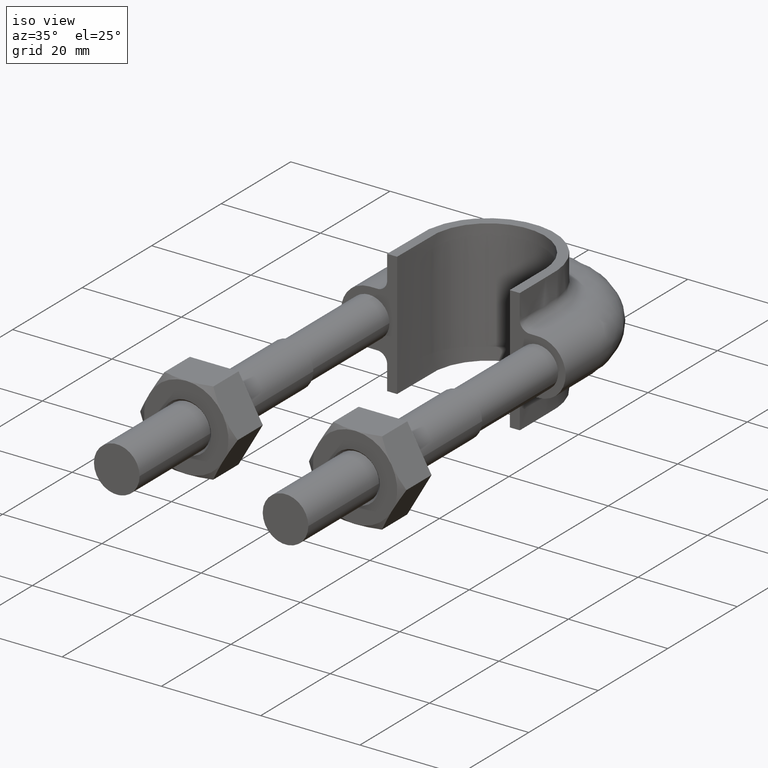
[diagram: clean part render]
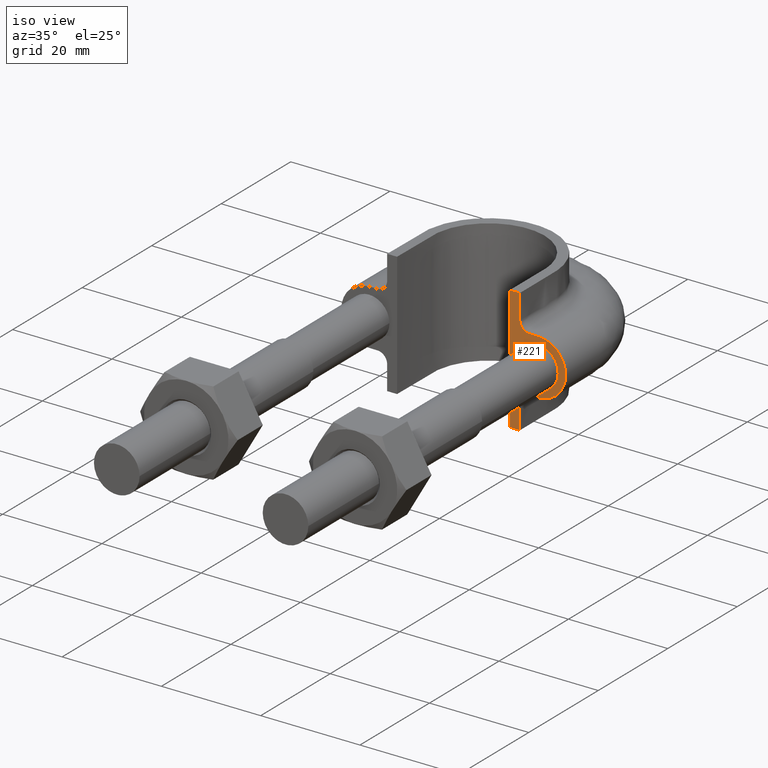
[diagram: same view with one face highlighted and labeled with its STEP entity id]
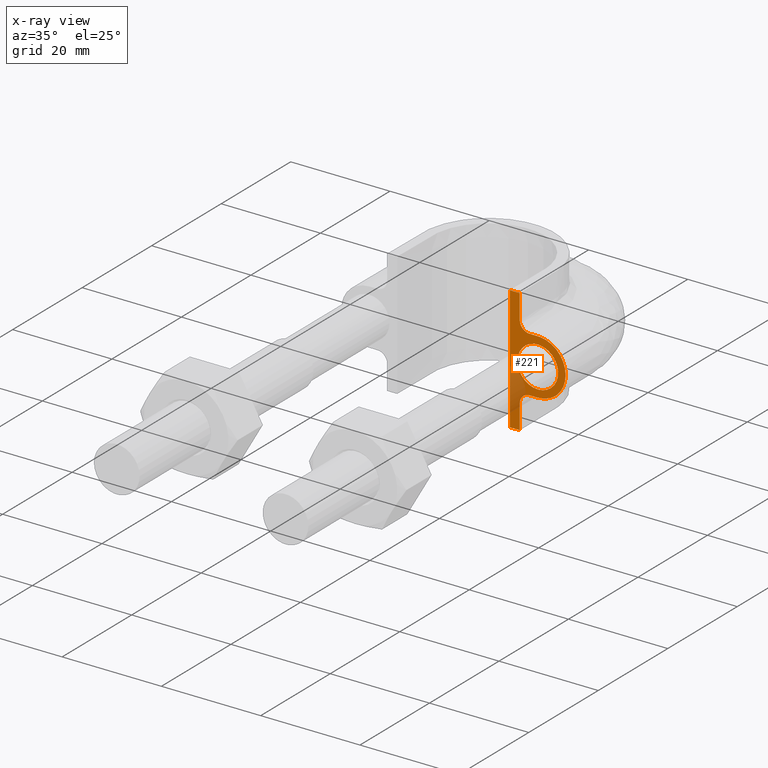
[diagram: x-ray of the same camera — body ghosted, the highlighted face saturated]
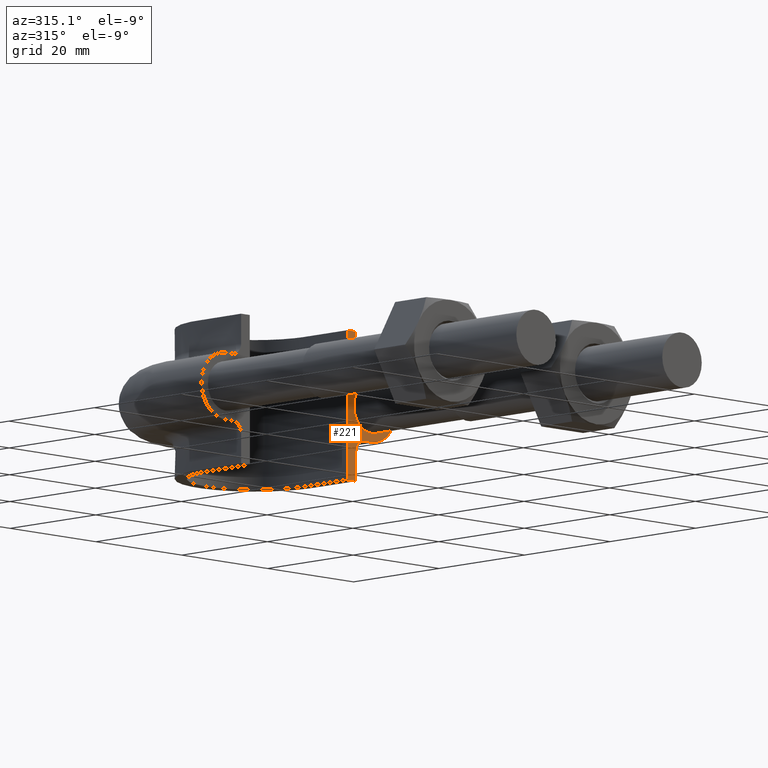
[diagram: same view with one face highlighted and labeled with its STEP entity id]
A machine part, iso view. The second image highlights one B-rep face of the part: STEP entity #221.
The next image is the same camera in x-ray: the body ghosted, the highlighted face saturated — about 20% of this face is hidden behind the body in this view.
A second angle (auxiliary view) of the same face is appended — the face is thin or edge-on in the first view.
In plain terms, the highlighted planar face has unit normal (0, 1, 0).
Its self-contained STEP definition (entity closure, byte-faithful):
#221 = ADVANCED_FACE( '', ( #301, #302 ), #303, .F. );
#301 = FACE_BOUND( '', #473, .T. );
#302 = FACE_OUTER_BOUND( '', #474, .T. );
#303 = PLANE( '', #475 );
#473 = EDGE_LOOP( '', ( #1562 ) );
#474 = EDGE_LOOP( '', ( #1563, #1564, #1565, #1566 ) );
#475 = AXIS2_PLACEMENT_3D( '', #1567, #1568, #1569 );
#1562 = ORIENTED_EDGE( '', *, *, #2095, .T. );
#1563 = ORIENTED_EDGE( '', *, *, #2096, .F. );
#1564 = ORIENTED_EDGE( '', *, *, #2094, .T. );
#1565 = ORIENTED_EDGE( '', *, *, #2097, .T. );
#1566 = ORIENTED_EDGE( '', *, *, #2098, .F. );
#1567 = CARTESIAN_POINT( '', ( -25.0000000000000, 72.6000000000000, 12.5000000000000 ) );
#1568 = DIRECTION( '', ( 1.22460635382238E-016, 1.00000000000000, 0.000000000000000 ) );
#1569 = DIRECTION( '', ( -1.00000000000000, 1.22460635382238E-016, 0.000000000000000 ) );
#2094 = EDGE_CURVE( '', #2249, #2251, #2253, .T. );
#2095 = EDGE_CURVE( '', #2254, #2254, #2255, .T. );
#2096 = EDGE_CURVE( '', #2249, #2256, #2257, .T. );
#2097 = EDGE_CURVE( '', #2251, #2258, #2259, .T. );
#2098 = EDGE_CURVE( '', #2256, #2258, #2260, .T. );
#2249 = VERTEX_POINT( '', #2541 );
#2251 = VERTEX_POINT( '', #2561 );
#2253 = LINE( '', #2581, #2582 );
#2254 = VERTEX_POINT( '', #2583 );
#2255 = B_SPLINE_CURVE_WITH_KNOTS( '', 3, ( #2584, #2585, #2586, #2587, #2588, #2589, #2590, #2591, #2592, #2593 ), .UNSPECIFIED., .T., .F., ( 4, 1, 1, 1, 1, 1, 1, 4 ), ( 0.000000000000000, 0.00365634574703305, 0.00731269149406610, 0.0109690372410991, 0.0146253829881322, 0.0182817287351652, 0.0219380744821983, 0.0255944202292313 ), .UNSPECIFIED. );
#2256 = VERTEX_POINT( '', #2594 );
#2257 = LINE( '', #2595, #2596 );
#2258 = VERTEX_POINT( '', #2597 );
#2259 = B_SPLINE_CURVE_WITH_KNOTS( '', 3, ( #2598, #2599, #2600, #2601, #2602, #2603, #2604, #2605, #2606, #2607, #2608, #2609, #2610, #2611, #2612, #2613, #2614, #2615, #2616, #2617, #2618, #2619, #2620, #2621, #2622, #2623, #2624, #2625, #2626, #2627, #2628 ), .UNSPECIFIED., .F., .F., ( 4, 3, 1, 1, 1, 3, 3, 1, 1, 1, 3, 3, 1, 1, 1, 3, 4 ), ( 1.38777878078145E-016, 0.00229452256537106, 0.00458904513074197, 0.00688356769611288, 0.00917809026148379, 0.0114726128268547, 0.0137671353922256, 0.0160616579575965, 0.0183561805229675, 0.0206507030883384, 0.0229452256537093, 0.0252397482190802, 0.0275342707844511, 0.0298287933498220, 0.0321233159151929, 0.0344178384805638, 0.0367123610459348 ), .UNSPECIFIED. );
#2260 = LINE( '', #2629, #2630 );
#2541 = CARTESIAN_POINT( '', ( 11.3600000000000, 72.6000000000000, -12.5000000000000 ) );
#2561 = CARTESIAN_POINT( '', ( 13.3600000000002, 72.6000000000000, -12.5000000000000 ) );
#2581 = CARTESIAN_POINT( '', ( -25.0000000000000, 72.6000000000000, -12.5000000000000 ) );
#2582 = VECTOR( '', #3112, 1000.00000000000 );
#2583 = CARTESIAN_POINT( '', ( 12.9000000000000, 72.6000000000000, 5.27117505211619E-016 ) );
#2584 = CARTESIAN_POINT( '', ( 12.9000000000000, 72.6000000000000, 3.25260651745651E-016 ) );
#2585 = CARTESIAN_POINT( '', ( 12.9000000000000, 72.6000000000000, 1.22184926194408 ) );
#2586 = CARTESIAN_POINT( '', ( 14.0768231851220, 72.6000000000000, 3.66554778583225 ) );
#2587 = CARTESIAN_POINT( '', ( 18.0432697263483, 72.6000000000000, 4.57086332538453 ) );
#2588 = CARTESIAN_POINT( '', ( 21.2241128848103, 72.6000000000000, 2.03422555230246 ) );
#2589 = CARTESIAN_POINT( '', ( 21.2241128848103, 72.6000000000000, -2.03422555230246 ) );
#2590 = CARTESIAN_POINT( '', ( 18.0432697263483, 72.6000000000000, -4.57086332538454 ) );
#2591 = CARTESIAN_POINT( '', ( 14.0768231851220, 72.6000000000000, -3.66554778583225 ) );
#2592 = CARTESIAN_POINT( '', ( 12.9000000000000, 72.6000000000000, -1.22184926194408 ) );
#2593 = CARTESIAN_POINT( '', ( 12.9000000000000, 72.6000000000000, 3.25260651745651E-016 ) );
#2594 = CARTESIAN_POINT( '', ( 11.3600000000000, 72.6000000000000, 12.5000000000000 ) );
#2595 = CARTESIAN_POINT( '', ( 11.3600000000000, 72.6000000000000, -51.4398853821152 ) );
#2596 = VECTOR( '', #3113, 1000.00000000000 );
#2597 = CARTESIAN_POINT( '', ( 13.3600000000000, 72.6000000000000, 12.5000000000000 ) );
#2598 = CARTESIAN_POINT( '', ( 13.3600000000002, 72.6000000000004, -12.5000000000001 ) );
#2599 = CARTESIAN_POINT( '', ( 13.3599999999999, 72.5999999999996, -10.8666666666666 ) );
#2600 = CARTESIAN_POINT( '', ( 13.3600000000001, 72.6000000000001, -9.23333333333339 ) );
#2601 = CARTESIAN_POINT( '', ( 13.3600000000000, 72.6000000000000, -7.60000000000001 ) );
#2602 = CARTESIAN_POINT( '', ( 13.3600000000000, 72.5999999999999, -7.33823584172334 ) );
#2603 = CARTESIAN_POINT( '', ( 13.4641362568359, 72.6000000000000, -6.81470752517002 ) );
#2604 = CARTESIAN_POINT( '', ( 13.9089687109389, 72.6000000000000, -6.14896871093889 ) );
#2605 = CARTESIAN_POINT( '', ( 14.5747075251700, 72.6000000000000, -5.70413625683591 ) );
#2606 = CARTESIAN_POINT( '', ( 15.0982358417234, 72.5999999999999, -5.60000000000000 ) );
#2607 = CARTESIAN_POINT( '', ( 15.3600000000000, 72.6000000000000, -5.60000000000001 ) );
#2608 = CARTESIAN_POINT( '', ( 15.9066666666667, 72.6000000000000, -5.60000000000000 ) );
#2609 = CARTESIAN_POINT( '', ( 16.4533333333334, 72.5999999999999, -5.60000000000001 ) );
#2610 = CARTESIAN_POINT( '', ( 17.0000000000000, 72.6000000000000, -5.60000000000001 ) );
#2611 = CARTESIAN_POINT( '', ( 18.4627416997970, 72.5999999999999, -5.60000000000000 ) );
#2612 = CARTESIAN_POINT( '', ( 21.3882250993909, 72.6000000000000, -4.38822509939087 ) );
#2613 = CARTESIAN_POINT( '', ( 23.2058874503046, 72.5999999999999, -6.60040479667488E-015 ) );
#2614 = CARTESIAN_POINT( '', ( 21.3882250993909, 72.5999999999999, 4.38822509939083 ) );
#2615 = CARTESIAN_POINT( '', ( 18.4627416997970, 72.6000000000000, 5.59999999999999 ) );
#2616 = CARTESIAN_POINT( '', ( 17.0000000000000, 72.6000000000000, 5.59999999999999 ) );
#2617 = CARTESIAN_POINT( '', ( 16.4533333333333, 72.5999999999999, 5.59999999999999 ) );
#2618 = CARTESIAN_POINT( '', ( 15.9066666666667, 72.6000000000000, 5.59999999999999 ) );
#2619 = CARTESIAN_POINT( '', ( 15.3600000000000, 72.6000000000000, 5.59999999999999 ) );
#2620 = CARTESIAN_POINT( '', ( 15.0982358417233, 72.6000000000000, 5.59999999999997 ) );
#2621 = CARTESIAN_POINT( '', ( 14.5747075251700, 72.5999999999999, 5.70413625683588 ) );
#2622 = CARTESIAN_POINT( '', ( 13.9089687109389, 72.6000000000000, 6.14896871093885 ) );
#2623 = CARTESIAN_POINT( '', ( 13.4641362568359, 72.5999999999999, 6.81470752516997 ) );
#2624 = CARTESIAN_POINT( '', ( 13.3600000000001, 72.6000000000001, 7.33823584172333 ) );
#2625 = CARTESIAN_POINT( '', ( 13.3599999999999, 72.5999999999998, 7.59999999999992 ) );
#2626 = CARTESIAN_POINT( '', ( 13.3600000000001, 72.6000000000001, 9.23333333333334 ) );
#2627 = CARTESIAN_POINT( '', ( 13.3600000000000, 72.5999999999999, 10.8666666666666 ) );
#2628 = CARTESIAN_POINT( '', ( 13.3600000000000, 72.6000000000000, 12.5000000000000 ) );
#2629 = CARTESIAN_POINT( '', ( -25.0000000000000, 72.6000000000000, 12.5000000000000 ) );
#2630 = VECTOR( '', #3114, 1000.00000000000 );
#3112 = DIRECTION( '', ( 1.00000000000000, -1.22460635382238E-016, 0.000000000000000 ) );
#3113 = DIRECTION( '', ( 0.000000000000000, 0.000000000000000, 1.00000000000000 ) );
#3114 = DIRECTION( '', ( 1.00000000000000, -1.22460635382238E-016, 0.000000000000000 ) );